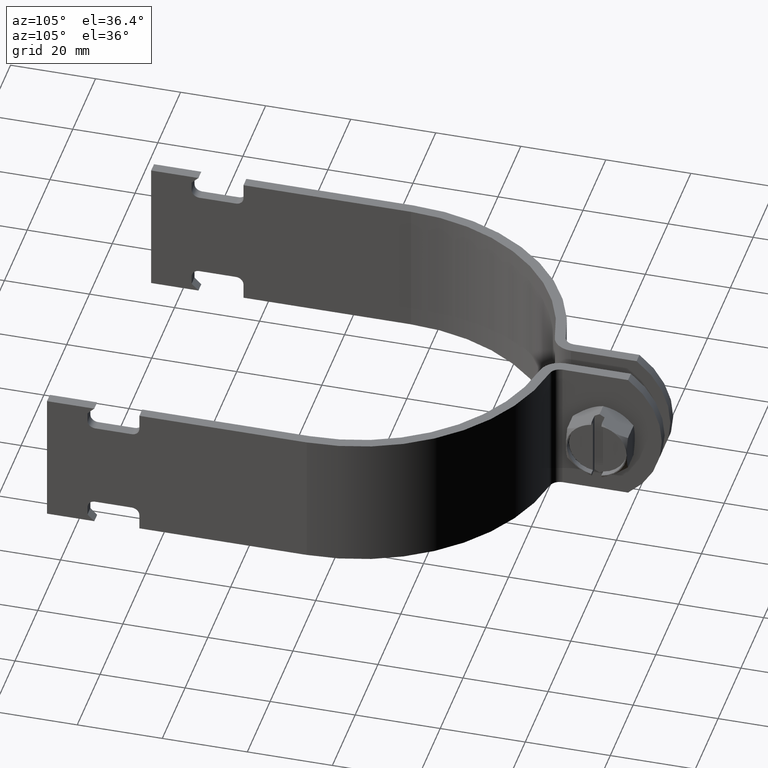
[diagram: clean part render]
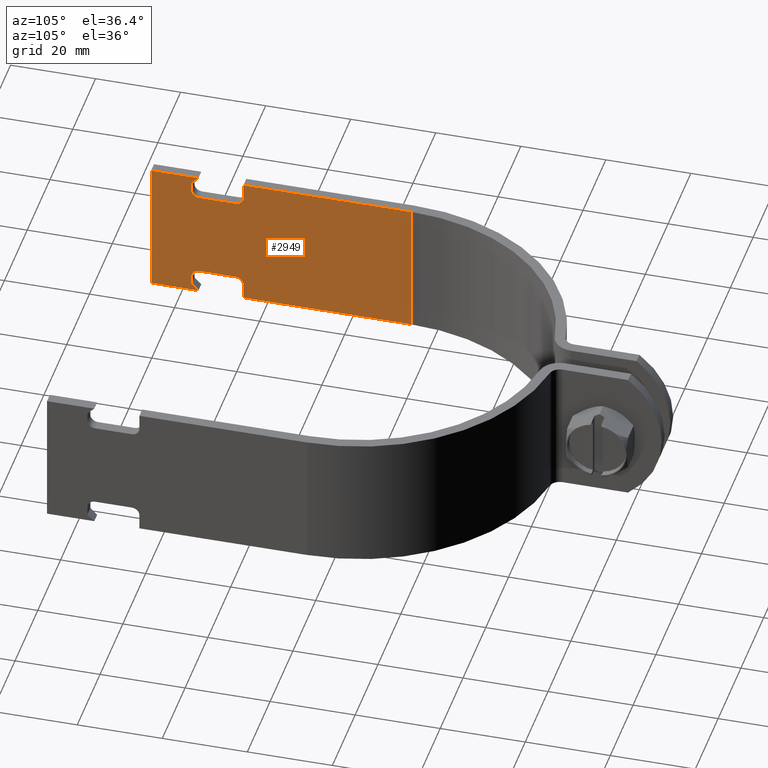
[diagram: same view with one face highlighted and labeled with its STEP entity id]
A machine part, auxiliary view. The second image highlights one B-rep face of the part: STEP entity #2949.
In plain terms, the highlighted planar face has unit normal (-1, 0, 0).
Its self-contained STEP definition (entity closure, byte-faithful):
#38 = VECTOR ( 'NONE', #2946, 1000.000000000000000 ) ;
#84 = DIRECTION ( 'NONE',  ( 3.406294256439230771E-16, 1.000000000000000000, 0.000000000000000000 ) ) ;
#109 = LINE ( 'NONE', #1290, #1204 ) ;
#122 = ORIENTED_EDGE ( 'NONE', *, *, #2920, .F. ) ;
#180 = CARTESIAN_POINT ( 'NONE',  ( -44.45000000000000995, -46.73599999999999710, -12.12850000000001316 ) ) ;
#194 = VERTEX_POINT ( 'NONE', #3293 ) ;
#197 = CARTESIAN_POINT ( 'NONE',  ( -44.45000000000001705, -66.67499999999999716, -15.87500000000000000 ) ) ;
#202 = DIRECTION ( 'NONE',  ( 0.000000000000000000, -1.000000000000000000, 0.000000000000000000 ) ) ;
#232 = DIRECTION ( 'NONE',  ( -3.406294256439231264E-16, -1.000000000000000000, 0.000000000000000000 ) ) ;
#243 = VERTEX_POINT ( 'NONE', #977 ) ;
#286 = CARTESIAN_POINT ( 'NONE',  ( -44.45000000000000995, -46.73599999999999710, 10.35049999999998427 ) ) ;
#341 = EDGE_CURVE ( 'NONE', #2528, #2615, #2130, .T. ) ;
#356 = DIRECTION ( 'NONE',  ( -2.408613767444979828E-16, -0.7071067811865506814, 0.7071067811865443531 ) ) ;
#387 = CARTESIAN_POINT ( 'NONE',  ( -44.45000000000000995, -55.37199999999999989, 12.12849999999998474 ) ) ;
#395 = ORIENTED_EDGE ( 'NONE', *, *, #2570, .T. ) ;
#403 = VERTEX_POINT ( 'NONE', #645 ) ;
#477 = VECTOR ( 'NONE', #2412, 1000.000000000000000 ) ;
#482 = ORIENTED_EDGE ( 'NONE', *, *, #3150, .T. ) ;
#493 = AXIS2_PLACEMENT_3D ( 'NONE', #2504, #1865, #1314 ) ;
#519 = FACE_OUTER_BOUND ( 'NONE', #3375, .T. ) ;
#546 = CARTESIAN_POINT ( 'NONE',  ( -44.45000000000000995, -44.95799999999999841, 12.12849999999998474 ) ) ;
#565 = CARTESIAN_POINT ( 'NONE',  ( -44.45000000000001705, -66.67499999999996874, -10.35050000000003045 ) ) ;
#576 = CARTESIAN_POINT ( 'NONE',  ( -44.45000000000000284, -55.54979999999999762, 15.87500000000000000 ) ) ;
#579 = VERTEX_POINT ( 'NONE', #1669 ) ;
#635 = CARTESIAN_POINT ( 'NONE',  ( -44.45000000000000995, -55.37199999999999989, 10.35049999999998782 ) ) ;
#645 = CARTESIAN_POINT ( 'NONE',  ( -44.45000000000000995, -44.95799999999999841, -12.12850000000001316 ) ) ;
#675 = DIRECTION ( 'NONE',  ( 0.000000000000000000, -1.000000000000000000, 0.000000000000000000 ) ) ;
#683 = CARTESIAN_POINT ( 'NONE',  ( -44.45000000000001705, -66.67499999999999716, 15.87500000000000000 ) ) ;
#690 = CARTESIAN_POINT ( 'NONE',  ( -44.45000000000001705, -66.67499999999999716, 15.87500000000000000 ) ) ;
#725 = AXIS2_PLACEMENT_3D ( 'NONE', #387, #2196, #675 ) ;
#791 = PLANE ( 'NONE',  #3418 ) ;
#816 = CARTESIAN_POINT ( 'NONE',  ( -44.45000000000000995, -57.14999999999999147, -12.12850000000001671 ) ) ;
#848 = AXIS2_PLACEMENT_3D ( 'NONE', #180, #3110, #202 ) ;
#852 = CARTESIAN_POINT ( 'NONE',  ( -44.45000000000001705, -57.14999999999999147, 12.12849999999998474 ) ) ;
#855 = DIRECTION ( 'NONE',  ( 0.000000000000000000, -1.000000000000000000, 0.000000000000000000 ) ) ;
#878 = VERTEX_POINT ( 'NONE', #1504 ) ;
#889 = EDGE_CURVE ( 'NONE', #878, #1501, #2705, .T. ) ;
#917 = CARTESIAN_POINT ( 'NONE',  ( -44.45000000000001705, -61.11240000000002937, 10.31240000000000023 ) ) ;
#920 = ORIENTED_EDGE ( 'NONE', *, *, #2808, .T. ) ;
#930 = DIRECTION ( 'NONE',  ( 3.406294256439230771E-16, 1.000000000000000000, 0.000000000000000000 ) ) ;
#969 = VECTOR ( 'NONE', #1513, 1000.000000000000000 ) ;
#977 = CARTESIAN_POINT ( 'NONE',  ( -44.45000000000001705, -57.14999999999998437, -14.27480000000004523 ) ) ;
#1018 = VECTOR ( 'NONE', #930, 1000.000000000000000 ) ;
#1060 = CARTESIAN_POINT ( 'NONE',  ( -44.45000000000000995, -55.37199999999999989, -10.35050000000001980 ) ) ;
#1107 = VECTOR ( 'NONE', #2963, 1000.000000000000000 ) ;
#1145 = VECTOR ( 'NONE', #1357, 1000.000000000000000 ) ;
#1171 = CARTESIAN_POINT ( 'NONE',  ( -44.45000000000001705, -57.14999999999999147, 14.27480000000001503 ) ) ;
#1172 = VERTEX_POINT ( 'NONE', #546 ) ;
#1204 = VECTOR ( 'NONE', #356, 1000.000000000000114 ) ;
#1213 = CARTESIAN_POINT ( 'NONE',  ( -44.45000000000000284, -44.95799999999999130, -15.87500000000002842 ) ) ;
#1236 = VERTEX_POINT ( 'NONE', #3589 ) ;
#1265 = VECTOR ( 'NONE', #3763, 1000.000000000000000 ) ;
#1270 = DIRECTION ( 'NONE',  ( -0.000000000000000000, -0.000000000000000000, -1.000000000000000000 ) ) ;
#1290 = CARTESIAN_POINT ( 'NONE',  ( -44.45000000000002416, -76.98740000000006489, 5.562599999999847888 ) ) ;
#1314 = DIRECTION ( 'NONE',  ( 0.000000000000000000, -1.000000000000000000, 0.000000000000000000 ) ) ;
#1357 = DIRECTION ( 'NONE',  ( 3.406294256439230771E-16, 1.000000000000000000, 0.000000000000000000 ) ) ;
#1402 = VECTOR ( 'NONE', #84, 1000.000000000000000 ) ;
#1446 = ORIENTED_EDGE ( 'NONE', *, *, #3252, .T. ) ;
#1474 = ORIENTED_EDGE ( 'NONE', *, *, #1769, .T. ) ;
#1485 = ORIENTED_EDGE ( 'NONE', *, *, #2045, .F. ) ;
#1501 = VERTEX_POINT ( 'NONE', #576 ) ;
#1503 = EDGE_CURVE ( 'NONE', #1970, #1501, #1782, .T. ) ;
#1504 = CARTESIAN_POINT ( 'NONE',  ( -44.45000000000001705, -66.67499999999999716, 15.87500000000000000 ) ) ;
#1513 = DIRECTION ( 'NONE',  ( 6.308798732395647621E-31, 1.852100334687628633E-15, -1.000000000000000000 ) ) ;
#1563 = VERTEX_POINT ( 'NONE', #286 ) ;
#1669 = CARTESIAN_POINT ( 'NONE',  ( -44.44999999999999574, -5.562600000000000655, -15.87500000000000000 ) ) ;
#1704 = LINE ( 'NONE', #565, #2175 ) ;
#1719 = VERTEX_POINT ( 'NONE', #1860 ) ;
#1763 = VERTEX_POINT ( 'NONE', #1213 ) ;
#1769 = EDGE_CURVE ( 'NONE', #878, #3658, #3579, .T. ) ;
#1782 = LINE ( 'NONE', #917, #1107 ) ;
#1807 = CIRCLE ( 'NONE', #848, 1.778000000000001801 ) ;
#1844 = ORIENTED_EDGE ( 'NONE', *, *, #889, .F. ) ;
#1845 = LINE ( 'NONE', #2752, #2181 ) ;
#1860 = CARTESIAN_POINT ( 'NONE',  ( -44.44999999999999574, -5.562600000000000655, 15.87500000000000000 ) ) ;
#1865 = DIRECTION ( 'NONE',  ( -1.000000000000000000, 3.406294256439231264E-16, 0.000000000000000000 ) ) ;
#1879 = DIRECTION ( 'NONE',  ( 0.000000000000000000, 0.000000000000000000, 1.000000000000000000 ) ) ;
#1944 = CARTESIAN_POINT ( 'NONE',  ( -44.45000000000001705, -66.67499999999999716, 15.87500000000000000 ) ) ;
#1970 = VERTEX_POINT ( 'NONE', #1171 ) ;
#2018 = ORIENTED_EDGE ( 'NONE', *, *, #1503, .T. ) ;
#2045 = EDGE_CURVE ( 'NONE', #3794, #1719, #3242, .T. ) ;
#2047 = ORIENTED_EDGE ( 'NONE', *, *, #2307, .T. ) ;
#2048 = CARTESIAN_POINT ( 'NONE',  ( -44.45000000000001705, -57.15000000000008384, 15.87500000000003197 ) ) ;
#2084 = CARTESIAN_POINT ( 'NONE',  ( -44.45000000000001705, -66.67499999999999716, 15.87500000000000000 ) ) ;
#2095 = EDGE_CURVE ( 'NONE', #1763, #579, #3554, .T. ) ;
#2130 = CIRCLE ( 'NONE', #493, 1.777999999999994918 ) ;
#2141 = ORIENTED_EDGE ( 'NONE', *, *, #2928, .T. ) ;
#2161 = ORIENTED_EDGE ( 'NONE', *, *, #3559, .T. ) ;
#2175 = VECTOR ( 'NONE', #3452, 1000.000000000000000 ) ;
#2181 = VECTOR ( 'NONE', #2462, 1000.000000000000000 ) ;
#2196 = DIRECTION ( 'NONE',  ( -1.000000000000000000, 3.406294256439231264E-16, 0.000000000000000000 ) ) ;
#2255 = EDGE_CURVE ( 'NONE', #1236, #403, #1807, .T. ) ;
#2258 = LINE ( 'NONE', #3440, #2670 ) ;
#2278 = CARTESIAN_POINT ( 'NONE',  ( -44.45000000000000284, -44.95799999999999841, 15.87500000000000000 ) ) ;
#2292 = CARTESIAN_POINT ( 'NONE',  ( -44.45000000000000995, -46.73599999999999710, 12.12849999999998474 ) ) ;
#2307 = EDGE_CURVE ( 'NONE', #1172, #1563, #3165, .T. ) ;
#2348 = EDGE_CURVE ( 'NONE', #3794, #1172, #2258, .T. ) ;
#2397 = CARTESIAN_POINT ( 'NONE',  ( -44.45000000000001705, -57.14999999999999147, 15.87500000000000000 ) ) ;
#2412 = DIRECTION ( 'NONE',  ( 3.406294256439230771E-16, 1.000000000000000000, 0.000000000000000000 ) ) ;
#2430 = CIRCLE ( 'NONE', #725, 1.777999999999994918 ) ;
#2462 = DIRECTION ( 'NONE',  ( -3.406294256439231264E-16, -1.000000000000000000, 4.017423520094506096E-16 ) ) ;
#2504 = CARTESIAN_POINT ( 'NONE',  ( -44.45000000000000995, -55.37199999999999989, -12.12850000000001671 ) ) ;
#2528 = VERTEX_POINT ( 'NONE', #816 ) ;
#2570 = EDGE_CURVE ( 'NONE', #2615, #1236, #1704, .T. ) ;
#2585 = VERTEX_POINT ( 'NONE', #852 ) ;
#2615 = VERTEX_POINT ( 'NONE', #1060 ) ;
#2670 = VECTOR ( 'NONE', #3189, 1000.000000000000000 ) ;
#2693 = VERTEX_POINT ( 'NONE', #635 ) ;
#2705 = LINE ( 'NONE', #683, #1402 ) ;
#2752 = CARTESIAN_POINT ( 'NONE',  ( -44.45000000000001705, -66.67499999999999716, 10.35049999999999137 ) ) ;
#2787 = ORIENTED_EDGE ( 'NONE', *, *, #3395, .T. ) ;
#2808 = EDGE_CURVE ( 'NONE', #2693, #2585, #2430, .T. ) ;
#2818 = LINE ( 'NONE', #197, #1145 ) ;
#2837 = DIRECTION ( 'NONE',  ( -1.000000000000000000, 3.406294256439231264E-16, 0.000000000000000000 ) ) ;
#2920 = EDGE_CURVE ( 'NONE', #1719, #579, #3687, .T. ) ;
#2928 = EDGE_CURVE ( 'NONE', #3658, #194, #2818, .T. ) ;
#2946 = DIRECTION ( 'NONE',  ( -1.101240015418164172E-30, -3.232956205519793341E-15, 1.000000000000000000 ) ) ;
#2949 = ADVANCED_FACE ( 'NONE', ( #519 ), #791, .F. ) ;
#2963 = DIRECTION ( 'NONE',  ( 2.408613767444976870E-16, 0.7071067811865497932, 0.7071067811865452413 ) ) ;
#3025 = CARTESIAN_POINT ( 'NONE',  ( -44.45000000000000995, -44.95800000000005525, 15.87500000000004263 ) ) ;
#3103 = AXIS2_PLACEMENT_3D ( 'NONE', #2292, #3475, #855 ) ;
#3110 = DIRECTION ( 'NONE',  ( -1.000000000000000000, 3.406294256439231264E-16, 0.000000000000000000 ) ) ;
#3150 = EDGE_CURVE ( 'NONE', #403, #1763, #3350, .T. ) ;
#3159 = ORIENTED_EDGE ( 'NONE', *, *, #341, .T. ) ;
#3160 = VECTOR ( 'NONE', #1879, 1000.000000000000000 ) ;
#3165 = CIRCLE ( 'NONE', #3103, 1.778000000000001801 ) ;
#3189 = DIRECTION ( 'NONE',  ( 0.000000000000000000, 0.000000000000000000, -1.000000000000000000 ) ) ;
#3198 = ORIENTED_EDGE ( 'NONE', *, *, #2095, .T. ) ;
#3242 = LINE ( 'NONE', #2084, #477 ) ;
#3252 = EDGE_CURVE ( 'NONE', #1563, #2693, #1845, .T. ) ;
#3293 = CARTESIAN_POINT ( 'NONE',  ( -44.45000000000000995, -55.54980000000002605, -15.87500000000000000 ) ) ;
#3304 = CARTESIAN_POINT ( 'NONE',  ( -44.45000000000001705, -66.67499999999999716, -15.87500000000000000 ) ) ;
#3350 = LINE ( 'NONE', #3025, #969 ) ;
#3375 = EDGE_LOOP ( 'NONE', ( #1485, #3563, #2047, #1446, #920, #2161, #2018, #1844, #1474, #2141, #3622, #2787, #3159, #395, #3693, #482, #3198, #122 ) ) ;
#3395 = EDGE_CURVE ( 'NONE', #243, #2528, #3503, .T. ) ;
#3418 = AXIS2_PLACEMENT_3D ( 'NONE', #1944, #2837, #232 ) ;
#3423 = CARTESIAN_POINT ( 'NONE',  ( -44.45000000000001705, -66.67499999999999716, -15.87500000000000000 ) ) ;
#3434 = VECTOR ( 'NONE', #1270, 1000.000000000000000 ) ;
#3440 = CARTESIAN_POINT ( 'NONE',  ( -44.45000000000000995, -44.95799999999999841, 15.87500000000000000 ) ) ;
#3452 = DIRECTION ( 'NONE',  ( 3.406294256439231264E-16, 1.000000000000000000, 8.034847040189012192E-16 ) ) ;
#3475 = DIRECTION ( 'NONE',  ( -1.000000000000000000, 3.406294256439231264E-16, 0.000000000000000000 ) ) ;
#3503 = LINE ( 'NONE', #2048, #38 ) ;
#3506 = EDGE_CURVE ( 'NONE', #194, #243, #109, .T. ) ;
#3554 = LINE ( 'NONE', #3304, #1018 ) ;
#3559 = EDGE_CURVE ( 'NONE', #2585, #1970, #3638, .T. ) ;
#3563 = ORIENTED_EDGE ( 'NONE', *, *, #2348, .T. ) ;
#3579 = LINE ( 'NONE', #690, #3434 ) ;
#3589 = CARTESIAN_POINT ( 'NONE',  ( -44.45000000000000995, -46.73599999999999710, -10.35050000000001269 ) ) ;
#3622 = ORIENTED_EDGE ( 'NONE', *, *, #3506, .T. ) ;
#3638 = LINE ( 'NONE', #2397, #3160 ) ;
#3658 = VERTEX_POINT ( 'NONE', #3423 ) ;
#3687 = LINE ( 'NONE', #3701, #1265 ) ;
#3693 = ORIENTED_EDGE ( 'NONE', *, *, #2255, .T. ) ;
#3701 = CARTESIAN_POINT ( 'NONE',  ( -44.44999999999999574, -5.562600000000000655, 15.87500000000000000 ) ) ;
#3763 = DIRECTION ( 'NONE',  ( -0.000000000000000000, -0.000000000000000000, -1.000000000000000000 ) ) ;
#3794 = VERTEX_POINT ( 'NONE', #2278 ) ;